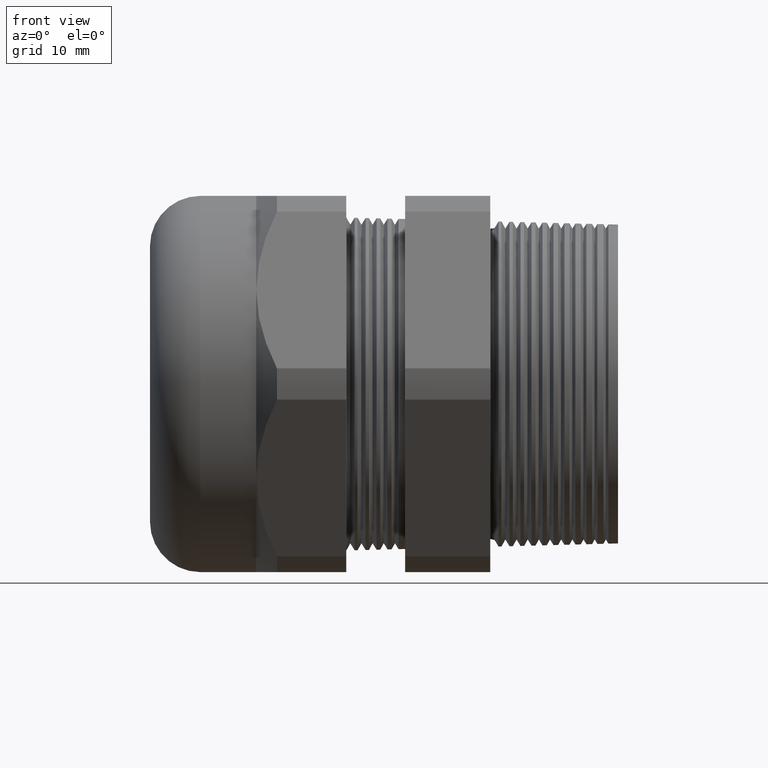
[diagram: clean part render]
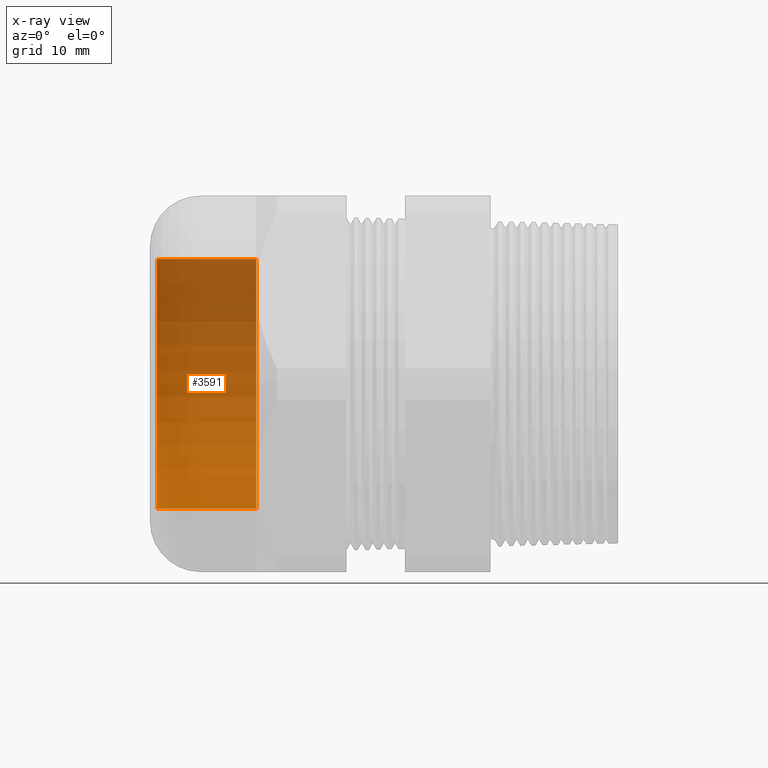
[diagram: x-ray — body ghosted, one internal face saturated and labeled with its STEP entity id]
A machine part, front view, then the same camera in x-ray: the body is ghosted and one INTERNAL B-rep face — a face not visible from any outside direction — is saturated and labeled: STEP entity #3591.
In plain terms, the highlighted cylindrical surface (partial cylindrical patch) has radius 17.6213 mm, axis along (1, 0, 0).
Its self-contained STEP definition (entity closure, byte-faithful):
#143 = EDGE_LOOP ( 'NONE', ( #313, #315, #378, #3606 ) ) ;
#310 = EDGE_CURVE ( 'NONE', #3588, #383, #1243, .T. ) ;
#313 = ORIENTED_EDGE ( 'NONE', *, *, #3595, .T. ) ;
#315 = ORIENTED_EDGE ( 'NONE', *, *, #310, .T. ) ;
#371 = EDGE_CURVE ( 'NONE', #3608, #383, #1385, .T. ) ;
#378 = ORIENTED_EDGE ( 'NONE', *, *, #371, .F. ) ;
#383 = VERTEX_POINT ( 'NONE', #1419 ) ;
#1237 = VECTOR ( 'NONE', #1298, 39.37007874015748100 ) ;
#1238 = CARTESIAN_POINT ( 'NONE',  ( 0.0000000000000000000, 8.495987169084765900E-017, 0.6937500000000002000 ) ) ;
#1243 = LINE ( 'NONE', #1238, #1237 ) ;
#1298 = DIRECTION ( 'NONE',  ( 1.000000000000000000, 0.0000000000000000000, 0.0000000000000000000 ) ) ;
#1381 = DIRECTION ( 'NONE',  ( 0.0000000000000000000, 0.0000000000000000000, -1.000000000000000000 ) ) ;
#1382 = DIRECTION ( 'NONE',  ( 1.000000000000000000, 0.0000000000000000000, 0.0000000000000000000 ) ) ;
#1383 = CARTESIAN_POINT ( 'NONE',  ( -1.609449999999999400, 0.0000000000000000000, 0.0000000000000000000 ) ) ;
#1384 = AXIS2_PLACEMENT_3D ( 'NONE', #1383, #1382, #1381 ) ;
#1385 = CIRCLE ( 'NONE', #1384, 0.6937500000000000900 ) ;
#1419 = CARTESIAN_POINT ( 'NONE',  ( -1.609449999999999400, 8.495987169084764700E-017, 0.6937500000000000900 ) ) ;
#2089 = DIRECTION ( 'NONE',  ( 0.0000000000000000000, 0.0000000000000000000, -1.000000000000000000 ) ) ;
#2090 = DIRECTION ( 'NONE',  ( 1.000000000000000000, 0.0000000000000000000, 0.0000000000000000000 ) ) ;
#2091 = AXIS2_PLACEMENT_3D ( 'NONE', #2098, #2090, #2089 ) ;
#2092 = CYLINDRICAL_SURFACE ( 'NONE', #2091, 0.6937500000000002000 ) ;
#2093 = FACE_OUTER_BOUND ( 'NONE', #143, .T. ) ;
#2098 = CARTESIAN_POINT ( 'NONE',  ( 0.0000000000000000000, 0.0000000000000000000, 0.0000000000000000000 ) ) ;
#2101 = CARTESIAN_POINT ( 'NONE',  ( -2.160999999999999600, 8.495987169084765900E-017, 0.6937500000000002000 ) ) ;
#2107 = CARTESIAN_POINT ( 'NONE',  ( -2.160999999999999600, 0.0000000000000000000, -0.6937500000000002000 ) ) ;
#2122 = DIRECTION ( 'NONE',  ( 1.000000000000000000, 0.0000000000000000000, 0.0000000000000000000 ) ) ;
#2123 = VECTOR ( 'NONE', #2122, 39.37007874015748100 ) ;
#2124 = CARTESIAN_POINT ( 'NONE',  ( 0.0000000000000000000, 0.0000000000000000000, -0.6937500000000002000 ) ) ;
#2125 = LINE ( 'NONE', #2124, #2123 ) ;
#2140 = DIRECTION ( 'NONE',  ( 0.0000000000000000000, 0.0000000000000000000, -1.000000000000000000 ) ) ;
#2141 = DIRECTION ( 'NONE',  ( 1.000000000000000000, 0.0000000000000000000, 0.0000000000000000000 ) ) ;
#2142 = CARTESIAN_POINT ( 'NONE',  ( -2.160999999999999600, 0.0000000000000000000, 0.0000000000000000000 ) ) ;
#2143 = AXIS2_PLACEMENT_3D ( 'NONE', #2142, #2141, #2140 ) ;
#2144 = CIRCLE ( 'NONE', #2143, 0.6937500000000002000 ) ;
#2179 = CARTESIAN_POINT ( 'NONE',  ( -1.609449999999999400, 0.0000000000000000000, -0.6937500000000000900 ) ) ;
#3586 = VERTEX_POINT ( 'NONE', #2107 ) ;
#3588 = VERTEX_POINT ( 'NONE', #2101 ) ;
#3591 = ADVANCED_FACE ( 'NONE', ( #2093 ), #2092, .T. ) ;
#3595 = EDGE_CURVE ( 'NONE', #3586, #3588, #2144, .T. ) ;
#3605 = EDGE_CURVE ( 'NONE', #3586, #3608, #2125, .T. ) ;
#3606 = ORIENTED_EDGE ( 'NONE', *, *, #3605, .F. ) ;
#3608 = VERTEX_POINT ( 'NONE', #2179 ) ;